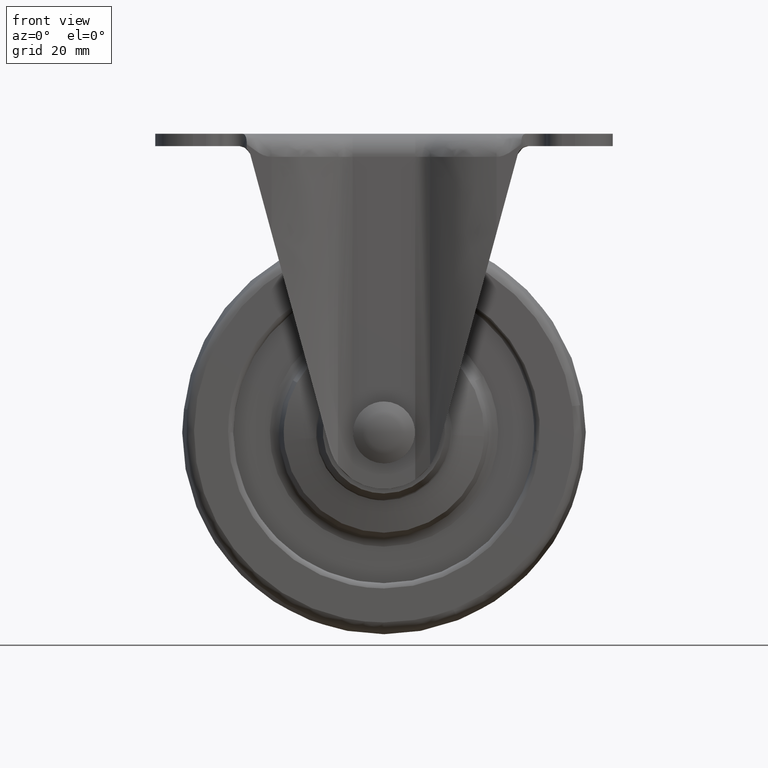
[diagram: clean part render]
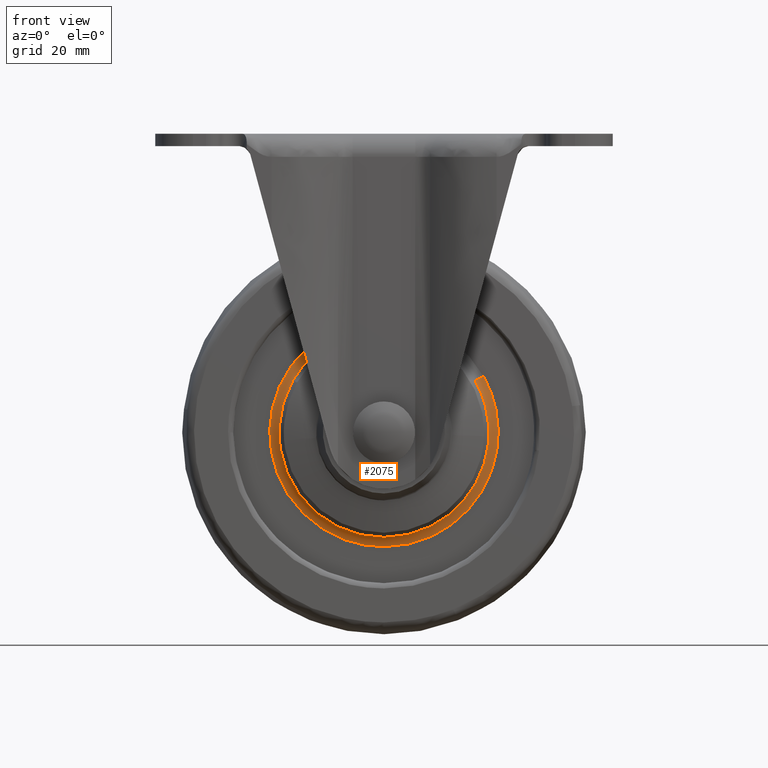
[diagram: same view with one face highlighted and labeled with its STEP entity id]
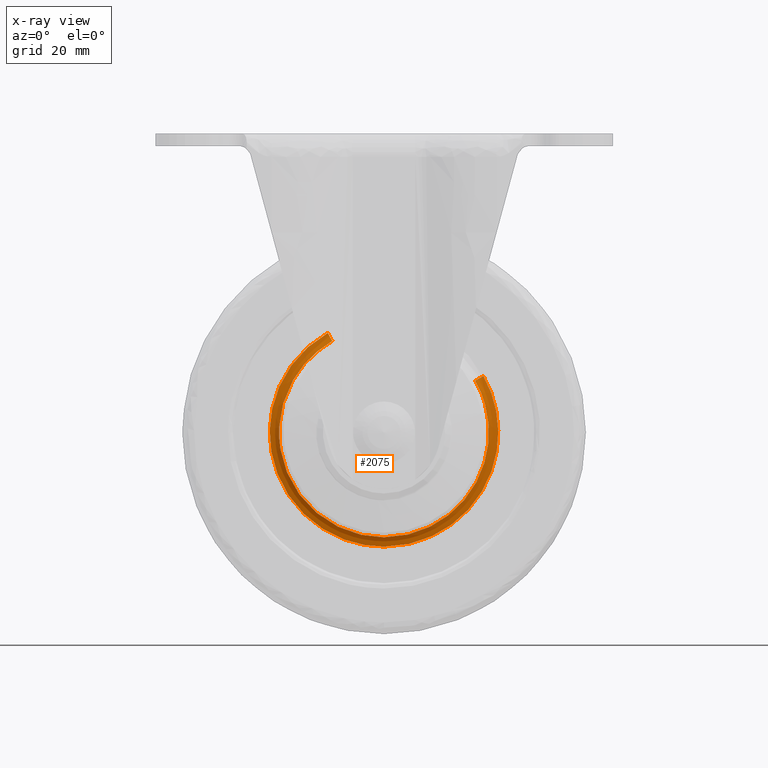
[diagram: x-ray of the same camera — body ghosted, the highlighted face saturated]
A machine part, front view. The second image highlights one B-rep face of the part: STEP entity #2075.
The next image is the same camera in x-ray: the body ghosted, the highlighted face saturated — about 0% of this face is hidden behind the body in this view.
In plain terms, the highlighted face is a freeform B-spline surface patch.
Its self-contained STEP definition (entity closure, byte-faithful):
#532=CARTESIAN_POINT('',(-9.608183061076108,-9.500000348516624,-38.531416959055747));
#533=VERTEX_POINT('',#532);
#534=CARTESIAN_POINT('',(-16.919931018627359,-9.500000349384912,-45.806397653227997));
#535=VERTEX_POINT('',#534);
#536=CARTESIAN_POINT('',(-9.608183061076106,-9.500000348516624,-38.531416959055754));
#537=CARTESIAN_POINT('',(-14.261590146298037,-9.500000349067491,-41.166332734345723));
#538=CARTESIAN_POINT('',(-16.919931018627359,-9.500000349384912,-45.806397653228004));
#546=(BOUNDED_CURVE()B_SPLINE_CURVE(2,(#536,#537,#538),.UNSPECIFIED.,.F.,.U.)B_SPLINE_CURVE_WITH_KNOTS((3,3),(0.583983638485073,0.665241917607358),.UNSPECIFIED.)CURVE()GEOMETRIC_REPRESENTATION_ITEM()RATIONAL_B_SPLINE_CURVE((0.869321279800569,0.838083220278655,0.868731463347146))REPRESENTATION_ITEM(''));
#547=EDGE_CURVE('',#533,#535,#546,.T.);
#558=CARTESIAN_POINT('',(-19.232569030846371,-9.500000349671662,-58.718428281054642));
#559=VERTEX_POINT('',#558);
#565=CARTESIAN_POINT('',(0.0,-9.500000349687610,-74.999999798107794));
#566=VERTEX_POINT('',#565);
#567=CARTESIAN_POINT('',(-19.232569030846363,-9.500000349671662,-58.718428281054642));
#568=CARTESIAN_POINT('',(-16.507968373067960,-9.500000349687610,-74.999999798107794));
#569=CARTESIAN_POINT('',(0.0,-9.500000349687610,-74.999999798107794));
#577=(BOUNDED_CURVE()B_SPLINE_CURVE(2,(#567,#568,#569),.UNSPECIFIED.,.F.,.U.)B_SPLINE_CURVE_WITH_KNOTS((3,3),(0.778400518242997,1.0),.UNSPECIFIED.)CURVE()GEOMETRIC_REPRESENTATION_ITEM()RATIONAL_B_SPLINE_CURVE((0.941013272808592,0.740380058003194,1.0))REPRESENTATION_ITEM(''));
#578=EDGE_CURVE('',#559,#566,#577,.T.);
#580=CARTESIAN_POINT('',(16.968583040952041,-9.500000348500539,-45.891816938918808));
#581=VERTEX_POINT('',#580);
#582=CARTESIAN_POINT('',(0.0,-9.500000349687610,-74.999999798107794));
#583=CARTESIAN_POINT('',(19.499999798107794,-9.500000349687610,-74.999999798107794));
#584=CARTESIAN_POINT('',(19.499999798107801,-9.500000349687610,-55.500000000000000));
#585=CARTESIAN_POINT('',(19.499999798107805,-9.500000349687610,-50.362439032104746));
#586=CARTESIAN_POINT('',(16.968583040952044,-9.500000348500539,-45.891816938918801));
#594=(BOUNDED_CURVE()B_SPLINE_CURVE(2,(#582,#583,#584,#585,#586),.UNSPECIFIED.,.F.,.U.)B_SPLINE_CURVE_WITH_KNOTS((3,2,3),(0.0,0.250000000000000,0.333983638485082),.UNSPECIFIED.)CURVE()GEOMETRIC_REPRESENTATION_ITEM()RATIONAL_B_SPLINE_CURVE((1.0,0.707106781186548,1.0,0.901607047185756,0.869321279800562))REPRESENTATION_ITEM(''));
#595=EDGE_CURVE('',#566,#581,#594,.T.);
#642=CARTESIAN_POINT('',(-16.919931018627359,-9.500000349384912,-45.806397653228018));
#643=CARTESIAN_POINT('',(-19.499999798107797,-9.500000349687610,-50.309840667899593));
#644=CARTESIAN_POINT('',(-19.499999798107801,-9.500000349687610,-55.500000000000000));
#645=CARTESIAN_POINT('',(-19.499999798107790,-9.500000349687609,-57.120325032138702));
#646=CARTESIAN_POINT('',(-19.232569030846371,-9.500000349671662,-58.718428281054642));
#654=(BOUNDED_CURVE()B_SPLINE_CURVE(2,(#642,#643,#644,#645,#646),.UNSPECIFIED.,.F.,.U.)B_SPLINE_CURVE_WITH_KNOTS((3,2,3),(0.665241917607358,0.750000000000000,0.778400518242997),.UNSPECIFIED.)CURVE()GEOMETRIC_REPRESENTATION_ITEM()RATIONAL_B_SPLINE_CURVE((0.868731463347146,0.900699729710253,1.0,0.966726723183354,0.941013272808591))REPRESENTATION_ITEM(''));
#655=EDGE_CURVE('',#535,#559,#654,.T.);
#1978=CARTESIAN_POINT('',(-9.584812739083459,-9.587067674253063,-38.572690241033648));
#1979=CARTESIAN_POINT('',(-26.512122498049798,-9.587067674253063,-48.157502980117123));
#1980=CARTESIAN_POINT('',(-16.927309758966338,-9.587067674253063,-65.084812739083446));
#1981=CARTESIAN_POINT('',(-7.342497019882885,-9.587067674253063,-82.012122498049791));
#1982=CARTESIAN_POINT('',(9.584812739083457,-9.587067674253063,-72.427309758966345));
#1983=CARTESIAN_POINT('',(26.512122498049798,-9.587067674253063,-62.842497019882899));
#1984=CARTESIAN_POINT('',(16.927309758966349,-9.587067674253063,-45.915187260916561));
#1985=CARTESIAN_POINT('',(-9.875177268943990,-8.438406864121106,-38.059890411369409));
#1986=CARTESIAN_POINT('',(-27.315286857574577,-8.438406864121104,-47.935067680313381));
#1987=CARTESIAN_POINT('',(-17.440109588630602,-8.438406864121106,-65.375177268943986));
#1988=CARTESIAN_POINT('',(-7.564932319686612,-8.438406864121104,-82.815286857574577));
#1989=CARTESIAN_POINT('',(9.875177268943986,-8.438406864121106,-72.940109588630619));
#1990=CARTESIAN_POINT('',(27.315286857574577,-8.438406864121104,-63.064932319686598));
#1991=CARTESIAN_POINT('',(17.440109588630602,-8.438406864121106,-45.624822731056028));
#1992=CARTESIAN_POINT('',(-10.510507790427825,-8.502463417708563,-36.937861548705257));
#1993=CARTESIAN_POINT('',(-29.072646241722563,-8.502463417708563,-47.448369339133095));
#1994=CARTESIAN_POINT('',(-18.562138451294739,-8.502463417708563,-66.010507790427823));
#1995=CARTESIAN_POINT('',(-8.051630660866913,-8.502463417708563,-84.572646241722566));
#1996=CARTESIAN_POINT('',(10.510507790427823,-8.502463417708563,-74.062138451294729));
#1997=CARTESIAN_POINT('',(29.072646241722563,-8.502463417708563,-63.551630660866905));
#1998=CARTESIAN_POINT('',(18.562138451294746,-8.502463417708563,-44.989492209572184));
#2006=(BOUNDED_SURFACE()B_SPLINE_SURFACE(2,2,((#1978,#1985,#1992),(#1979,#1986,#1993),(#1980,#1987,#1994),(#1981,#1988,#1995),(#1982,#1989,#1996),(#1983,#1990,#1997),(#1984,#1991,#1998)),.UNSPECIFIED.,.F.,.F.,.U.)B_SPLINE_SURFACE_WITH_KNOTS((3,2,2,3),(3,3),(0.0,35.342831680848263,70.685663361696527,106.028495042544800),(0.0,2.357742142444061),.UNSPECIFIED.)GEOMETRIC_REPRESENTATION_ITEM()RATIONAL_B_SPLINE_SURFACE(((0.922416123664813,0.774510954499321,0.921293982838072),(0.652246696119198,0.547661948029736,0.651453222731163),(0.922416123664813,0.774510954499321,0.921293982838072),(0.652246696119198,0.547661948029736,0.651453222731163),(0.922416123664813,0.774510954499321,0.921293982838072),(0.652246696119198,0.547661948029736,0.651453222731163),(0.922416123664813,0.774510954499321,0.921293982838072)))REPRESENTATION_ITEM('')SURFACE());
#2007=ORIENTED_EDGE('',*,*,#547,.F.);
#2008=CARTESIAN_POINT('',(-10.461611949969480,-8.500000000000000,-37.024214309063382));
#2009=VERTEX_POINT('',#2008);
#2010=CARTESIAN_POINT('',(-9.608183061076108,-9.500000348516624,-38.531416959055754));
#2011=CARTESIAN_POINT('',(-9.892659291676297,-8.500000000163754,-38.029016191699299));
#2012=CARTESIAN_POINT('',(-10.461611949969484,-8.500000000000000,-37.024214309063375));
#2020=(BOUNDED_CURVE()B_SPLINE_CURVE(2,(#2010,#2011,#2012),.UNSPECIFIED.,.F.,.U.)B_SPLINE_CURVE_WITH_KNOTS((3,3),(-1.635991466557681,-0.369314626381759),.UNSPECIFIED.)CURVE()GEOMETRIC_REPRESENTATION_ITEM()RATIONAL_B_SPLINE_CURVE((0.909590087489998,0.787286113534034,0.908569702332654))REPRESENTATION_ITEM(''));
#2021=EDGE_CURVE('',#533,#2009,#2020,.T.);
#2022=ORIENTED_EDGE('',*,*,#2021,.T.);
#2023=CARTESIAN_POINT('',(0.0,-8.500000000000000,-76.732050807568839));
#2024=VERTEX_POINT('',#2023);
#2025=CARTESIAN_POINT('',(-10.461611949969482,-8.500000000000000,-37.024214309063375));
#2026=CARTESIAN_POINT('',(-21.232050807568847,-8.500000000000000,-43.122799437784018));
#2027=CARTESIAN_POINT('',(-21.232050807568850,-8.500000000000000,-55.500000000000000));
#2028=CARTESIAN_POINT('',(-21.232050807568839,-8.500000000000002,-76.732050807568839));
#2029=CARTESIAN_POINT('',(0.0,-8.500000000000000,-76.732050807568839));
#2037=(BOUNDED_CURVE()B_SPLINE_CURVE(2,(#2025,#2026,#2027,#2028,#2029),.UNSPECIFIED.,.F.,.U.)B_SPLINE_CURVE_WITH_KNOTS((3,2,3),(0.583983638484674,0.750000000000000,1.0),.UNSPECIFIED.)CURVE()GEOMETRIC_REPRESENTATION_ITEM()RATIONAL_B_SPLINE_CURVE((0.869321279800876,0.805499734000313,1.0,0.707106781186548,1.0))REPRESENTATION_ITEM(''));
#2038=EDGE_CURVE('',#2009,#2024,#2037,.T.);
#2039=ORIENTED_EDGE('',*,*,#2038,.T.);
#2040=CARTESIAN_POINT('',(18.475785690438759,-8.500000000000000,-45.038388050285803));
#2041=VERTEX_POINT('',#2040);
#2042=CARTESIAN_POINT('',(0.0,-8.500000000000000,-76.732050807568839));
#2043=CARTESIAN_POINT('',(21.232050807568839,-8.500000000000002,-76.732050807568839));
#2044=CARTESIAN_POINT('',(21.232050807568850,-8.500000000000000,-55.500000000000000));
#2045=CARTESIAN_POINT('',(21.232050807568850,-8.499999999999998,-49.906104788379814));
#2046=CARTESIAN_POINT('',(18.475785690438762,-8.500000000000000,-45.038388050285796));
#2054=(BOUNDED_CURVE()B_SPLINE_CURVE(2,(#2042,#2043,#2044,#2045,#2046),.UNSPECIFIED.,.F.,.U.)B_SPLINE_CURVE_WITH_KNOTS((3,2,3),(0.0,0.250000000000000,0.333983638485009),.UNSPECIFIED.)CURVE()GEOMETRIC_REPRESENTATION_ITEM()RATIONAL_B_SPLINE_CURVE((1.0,0.707106781186548,1.0,0.901607047185841,0.869321279800618))REPRESENTATION_ITEM(''));
#2055=EDGE_CURVE('',#2024,#2041,#2054,.T.);
#2056=ORIENTED_EDGE('',*,*,#2055,.T.);
#2057=CARTESIAN_POINT('',(16.968583040952041,-9.500000348500539,-45.891816938918815));
#2058=CARTESIAN_POINT('',(17.470983807997950,-8.500000000809244,-45.607340708495130));
#2059=CARTESIAN_POINT('',(18.475785690438755,-8.500000000000002,-45.038388050285803));
#2067=(BOUNDED_CURVE()B_SPLINE_CURVE(2,(#2057,#2058,#2059),.UNSPECIFIED.,.F.,.U.)B_SPLINE_CURVE_WITH_KNOTS((3,3),(-1.635991466534141,-0.369314627089447),.UNSPECIFIED.)CURVE()GEOMETRIC_REPRESENTATION_ITEM()RATIONAL_B_SPLINE_CURVE((0.909590087485452,0.787286113604618,0.908569702197132))REPRESENTATION_ITEM(''));
#2068=EDGE_CURVE('',#581,#2041,#2067,.T.);
#2069=ORIENTED_EDGE('',*,*,#2068,.F.);
#2070=ORIENTED_EDGE('',*,*,#595,.F.);
#2071=ORIENTED_EDGE('',*,*,#578,.F.);
#2072=ORIENTED_EDGE('',*,*,#655,.F.);
#2073=EDGE_LOOP('',(#2007,#2022,#2039,#2056,#2069,#2070,#2071,#2072));
#2074=FACE_OUTER_BOUND('',#2073,.T.);
#2075=ADVANCED_FACE('',(#2074),#2006,.F.);